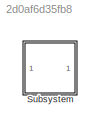
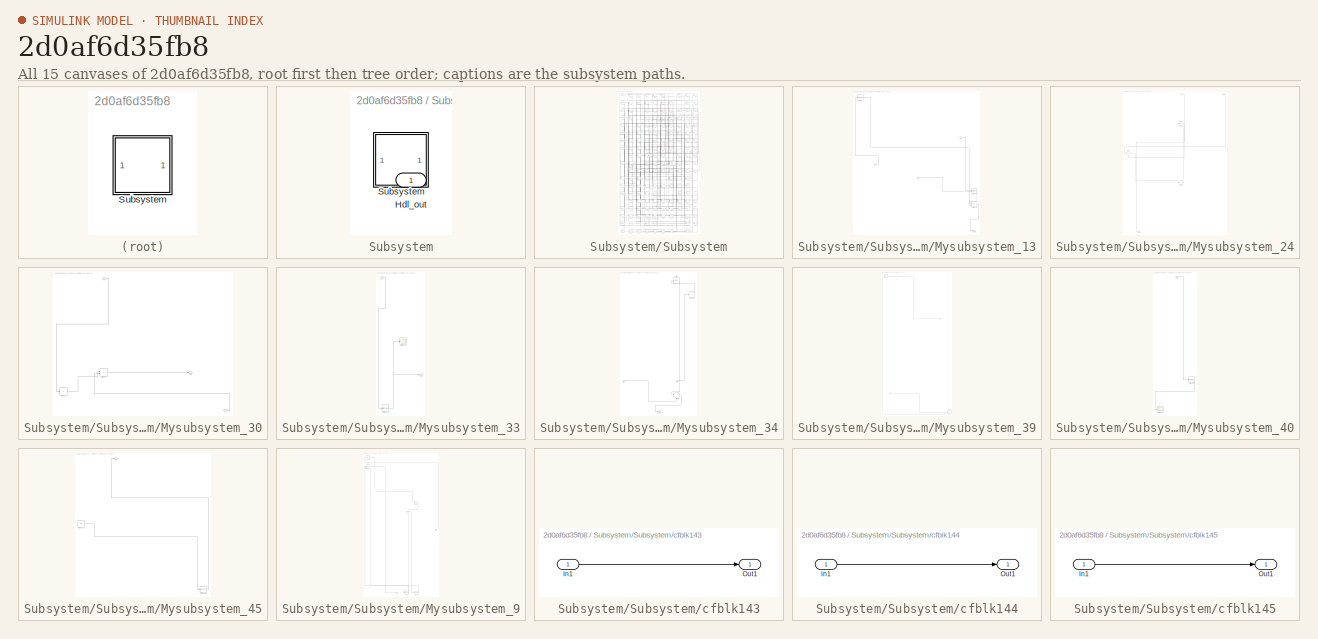
[diagram: thumbnail index - all 15 canvases of the model, root first then tree order]
MODEL slx_2d0af6d35fb8
KIND model
CONFIG AbsTol = auto
CONFIG EnableMultiTasking = off
CONFIG FixedStep = auto
CONFIG MaxStep = auto
CONFIG MinStep = auto
CONFIG RelTol = 1e-3
CONFIG SampleTimeConstraint = Unconstrained
CONFIG SolverName = VariableStepAuto
CONFIG StartTime = 0.0
CONFIG StopTime = 10.0
BLOCK [SubSystem] Subsystem
BLOCK [Outport] Subsystem/Hdl_out
  OutDataTypeStr = uint8
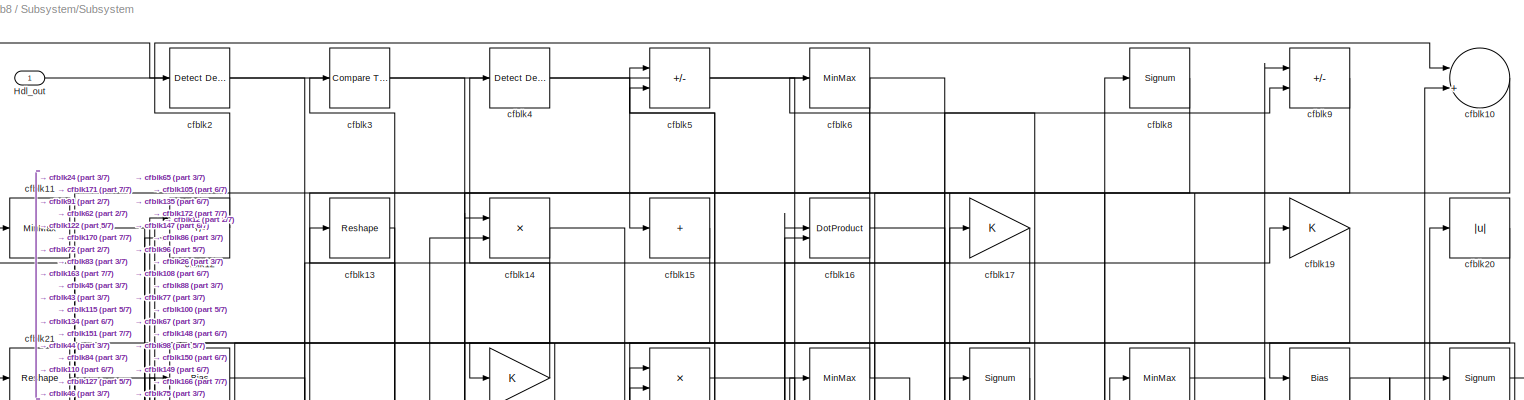
[diagram: Subsystem/Subsystem - part 1/7, full width, top band]
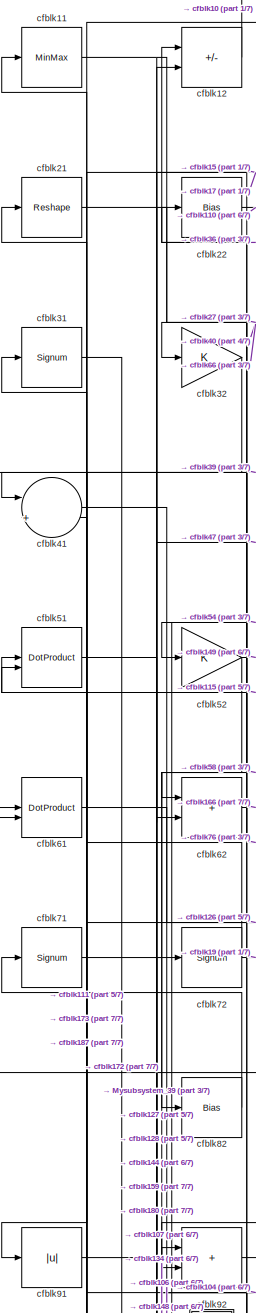
[diagram: Subsystem/Subsystem - part 2/7, top left region]
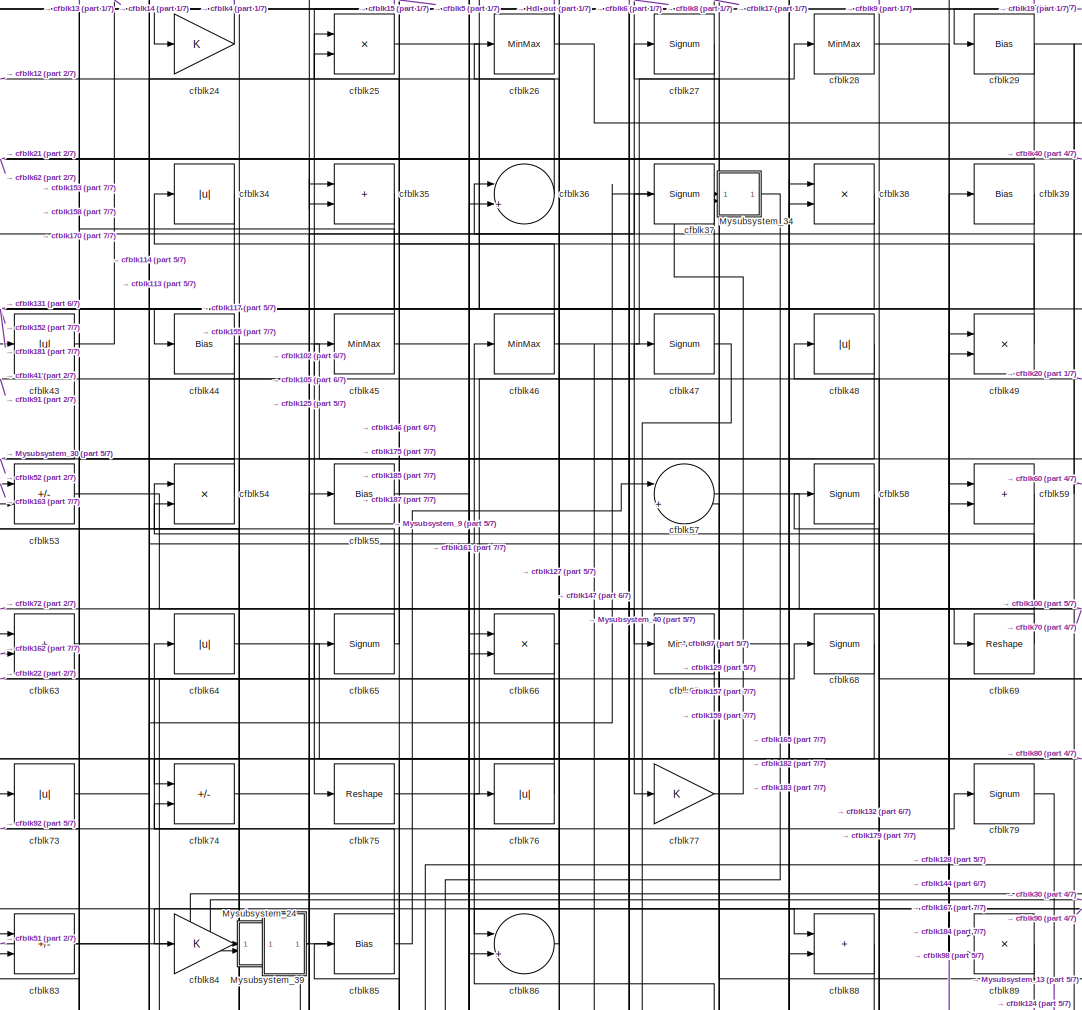
[diagram: Subsystem/Subsystem - part 3/7, top center region]
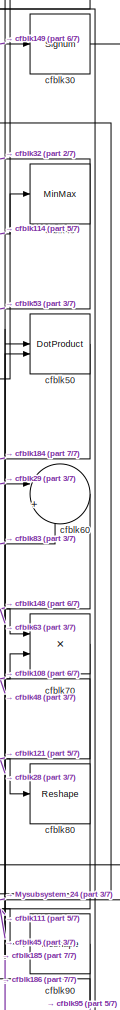
[diagram: Subsystem/Subsystem - part 4/7, top right region]
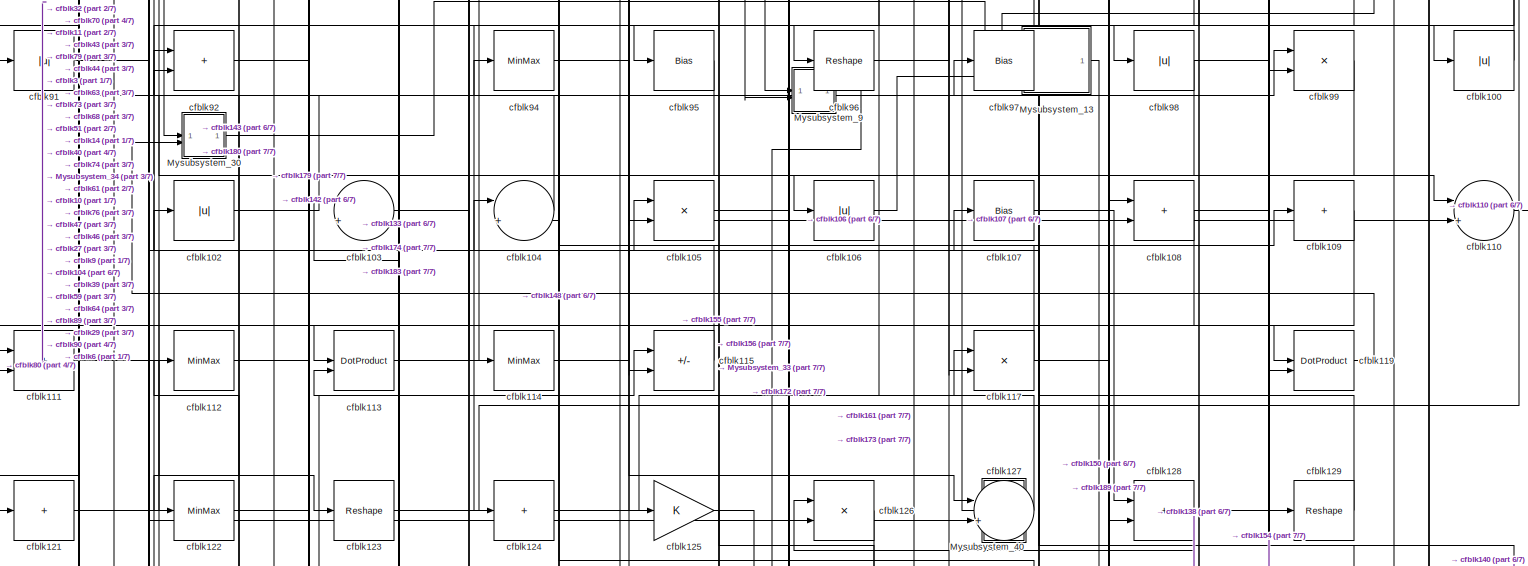
[diagram: Subsystem/Subsystem - part 5/7, full width, middle band]
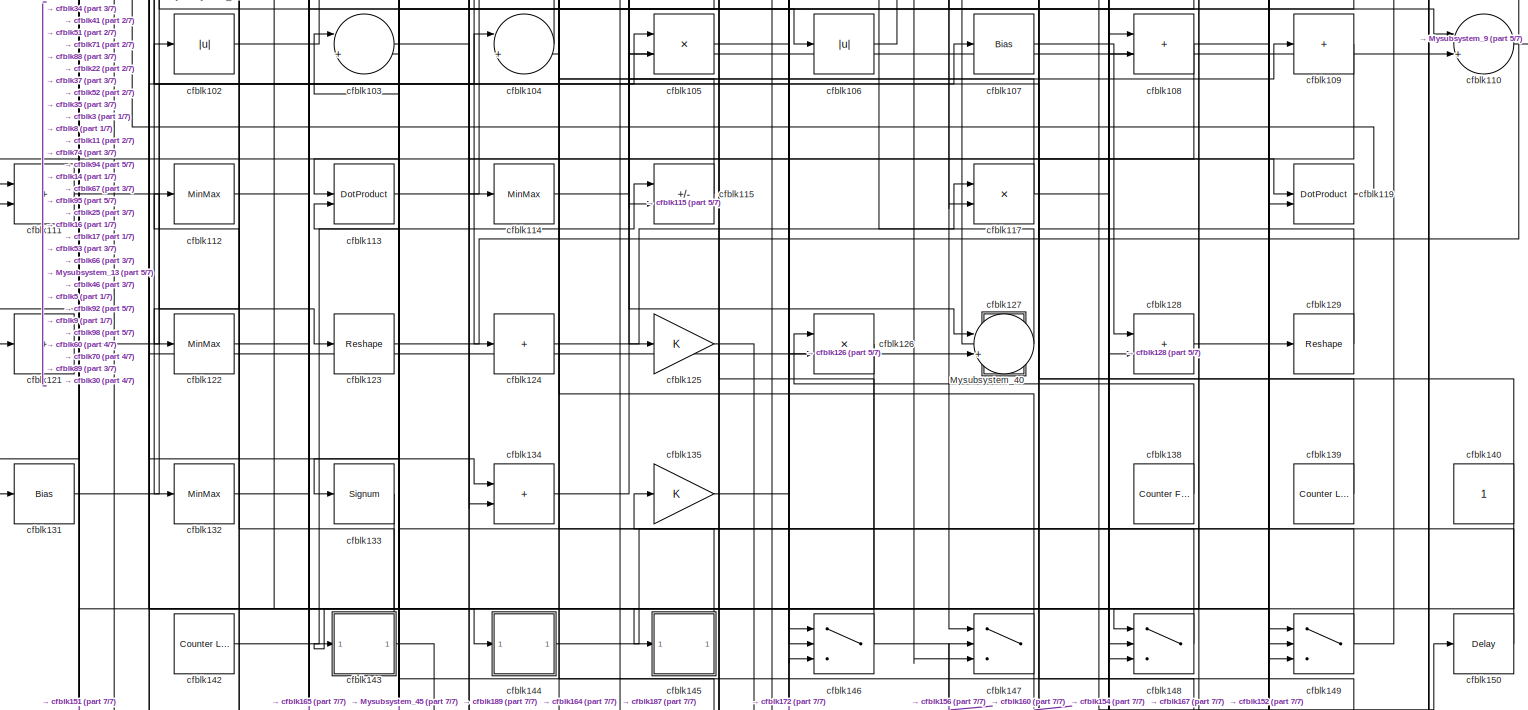
[diagram: Subsystem/Subsystem - part 6/7, full width, middle band]
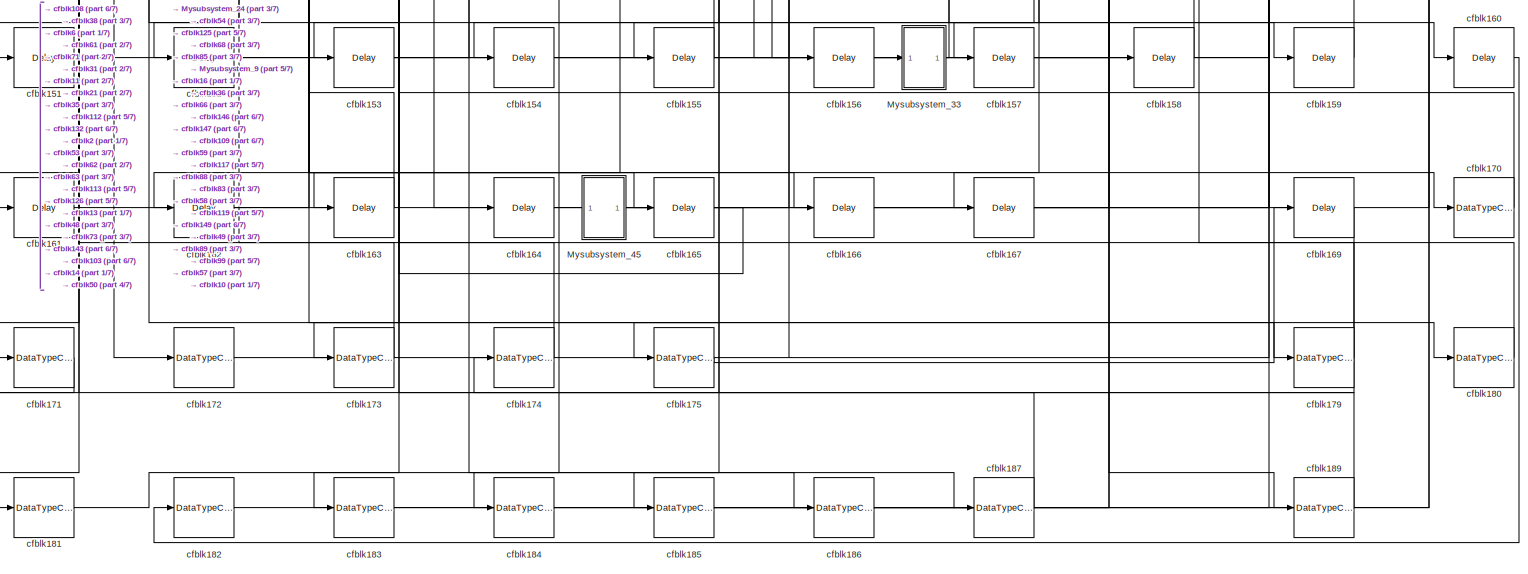
[diagram: Subsystem/Subsystem - part 7/7, full width, bottom band]
BLOCK [SubSystem] Subsystem/Subsystem
BLOCK [Outport] Subsystem/Subsystem/Hdl_out
  OutDataTypeStr = uint8
BLOCK [SubSystem] Subsystem/Subsystem/Mysubsystem_13
  RTWFcnName = Mysubsystem_13
  RTWFcnNameOpts = User specified
  RTWFileNameOpts = Use function name
  RTWSystemCode = Reusable function
  TreatAsAtomicUnit = on
BLOCK [Inport] Subsystem/Subsystem/Mysubsystem_13/In1
BLOCK [Inport] Subsystem/Subsystem/Mysubsystem_13/In2
  Port = 2
BLOCK [Inport] Subsystem/Subsystem/Mysubsystem_13/In3
  Port = 3
BLOCK [Outport] Subsystem/Subsystem/Mysubsystem_13/Out1
BLOCK [DotProduct] Subsystem/Subsystem/Mysubsystem_13/cfblk120
  OutDataTypeStr = Inherit: Inherit via internal rule
BLOCK [Sum] Subsystem/Subsystem/Mysubsystem_13/cfblk130
  IconShape = rectangular
  Inputs = +-
BLOCK [MinMax] Subsystem/Subsystem/Mysubsystem_13/cfblk42
BLOCK [SubSystem] Subsystem/Subsystem/Mysubsystem_24
  RTWFcnName = Mysubsystem_24
  RTWFcnNameOpts = User specified
  RTWFileNameOpts = Use function name
  RTWSystemCode = Reusable function
  TreatAsAtomicUnit = on
BLOCK [Inport] Subsystem/Subsystem/Mysubsystem_24/In1
BLOCK [Inport] Subsystem/Subsystem/Mysubsystem_24/In2
  Port = 2
BLOCK [Outport] Subsystem/Subsystem/Mysubsystem_24/Out1
BLOCK [Sum] Subsystem/Subsystem/Mysubsystem_24/cfblk116
  IconShape = rectangular
  Inputs = +
BLOCK [Bias] Subsystem/Subsystem/Mysubsystem_24/cfblk56
  Bias = 0.0
  SaturateOnIntegerOverflow = off
BLOCK [Sum] Subsystem/Subsystem/Mysubsystem_24/cfblk81
  Inputs = |++
BLOCK [SubSystem] Subsystem/Subsystem/Mysubsystem_30
  RTWFcnName = Mysubsystem_30
  RTWFcnNameOpts = User specified
  RTWFileNameOpts = Use function name
  RTWSystemCode = Reusable function
  TreatAsAtomicUnit = on
BLOCK [Inport] Subsystem/Subsystem/Mysubsystem_30/In1
BLOCK [Inport] Subsystem/Subsystem/Mysubsystem_30/In2
  Port = 2
BLOCK [Outport] Subsystem/Subsystem/Mysubsystem_30/Out1
BLOCK [Sum] Subsystem/Subsystem/Mysubsystem_30/cfblk101
  IconShape = rectangular
  Inputs = +
BLOCK [Sum] Subsystem/Subsystem/Mysubsystem_30/cfblk93
  IconShape = rectangular
BLOCK [SubSystem] Subsystem/Subsystem/Mysubsystem_33
  RTWFcnName = Mysubsystem_33
  RTWFcnNameOpts = User specified
  RTWFileNameOpts = Use function name
  RTWSystemCode = Reusable function
  TreatAsAtomicUnit = on
BLOCK [Inport] Subsystem/Subsystem/Mysubsystem_33/In1
BLOCK [Outport] Subsystem/Subsystem/Mysubsystem_33/Out1
BLOCK [Scope] Subsystem/Subsystem/Mysubsystem_33/cfblk137
  Floating = off
  NumInputPorts = 1
  ScopeSpecificationString = Simulink.scopes.TimeScopeBlockCfg('CurrentConfiguration', extmgr.ConfigurationSet(extmgr.Configuration('Core','General UI',true),extmgr.Configuration('Core','Source UI',true),extmgr.Configuration('Sources','WiredSimulink',true,'DataLoggingVariableName','ScopeData2','DataLoggingSaveFormat','Array','DataLoggingLimitDataPoints',true,'DataLoggingDecimation','1'),extmgr.Configuration('Visuals','Time Do...<+868ch>
BLOCK [DataTypeConversion] Subsystem/Subsystem/Mysubsystem_33/cfblk176
  RndMeth = Floor
  SaturateOnIntegerOverflow = off
BLOCK [SubSystem] Subsystem/Subsystem/Mysubsystem_34
  RTWFcnName = Mysubsystem_34
  RTWFcnNameOpts = User specified
  RTWFileNameOpts = Use function name
  RTWSystemCode = Reusable function
  TreatAsAtomicUnit = on
BLOCK [Inport] Subsystem/Subsystem/Mysubsystem_34/In1
BLOCK [Inport] Subsystem/Subsystem/Mysubsystem_34/In2
  Port = 2
BLOCK [Outport] Subsystem/Subsystem/Mysubsystem_34/Out1
BLOCK [Sum] Subsystem/Subsystem/Mysubsystem_34/cfblk18
  IconShape = rectangular
  Inputs = +
BLOCK [Bias] Subsystem/Subsystem/Mysubsystem_34/cfblk7
  Bias = 0.0
  SaturateOnIntegerOverflow = off
BLOCK [Sum] Subsystem/Subsystem/Mysubsystem_34/cfblk87
  Inputs = |++
BLOCK [SubSystem] Subsystem/Subsystem/Mysubsystem_39
  RTWFcnName = Mysubsystem_39
  RTWFcnNameOpts = User specified
  RTWFileNameOpts = Use function name
  RTWSystemCode = Reusable function
  TreatAsAtomicUnit = on
BLOCK [Inport] Subsystem/Subsystem/Mysubsystem_39/In1
BLOCK [Outport] Subsystem/Subsystem/Mysubsystem_39/Y
BLOCK [Reference] Subsystem/Subsystem/Mysubsystem_39/cfblk1  REF=hdlsllib/Logic and Bit
Operations/Detect Rise
Positive
  SourceBlock = hdlsllib/Logic and Bit\nOperations/Detect Rise\nPositive
  SourceType = Detect Rise Positive
BLOCK [Delay] Subsystem/Subsystem/Mysubsystem_39/cfblk168
  InputPortMap = u0
  SampleTime = 1
BLOCK [SubSystem] Subsystem/Subsystem/Mysubsystem_40
  RTWFcnName = Mysubsystem_40
  RTWFcnNameOpts = User specified
  RTWFileNameOpts = Use function name
  RTWSystemCode = Reusable function
  TreatAsAtomicUnit = on
BLOCK [Inport] Subsystem/Subsystem/Mysubsystem_40/In1
BLOCK [MinMax] Subsystem/Subsystem/Mysubsystem_40/cfblk118
BLOCK [Scope] Subsystem/Subsystem/Mysubsystem_40/cfblk136
  Floating = off
  NumInputPorts = 1
  ScopeSpecificationString = Simulink.scopes.TimeScopeBlockCfg('CurrentConfiguration', extmgr.ConfigurationSet(extmgr.Configuration('Core','General UI',true),extmgr.Configuration('Core','Source UI',true),extmgr.Configuration('Sources','WiredSimulink',true,'DataLoggingVariableName','ScopeData2','DataLoggingSaveFormat','Array','DataLoggingLimitDataPoints',true,'DataLoggingDecimation','1'),extmgr.Configuration('Visuals','Time Do...<+868ch>
BLOCK [SubSystem] Subsystem/Subsystem/Mysubsystem_45
  RTWFcnName = Mysubsystem_45
  RTWFcnNameOpts = User specified
  RTWFileNameOpts = Use function name
  RTWSystemCode = Reusable function
  TreatAsAtomicUnit = on
BLOCK [Outport] Subsystem/Subsystem/Mysubsystem_45/Out1
BLOCK [Ground] Subsystem/Subsystem/Mysubsystem_45/cfblk141
BLOCK [DataTypeConversion] Subsystem/Subsystem/Mysubsystem_45/cfblk188
  OutDataTypeStr = uint8
  RndMeth = Floor
  SaturateOnIntegerOverflow = off
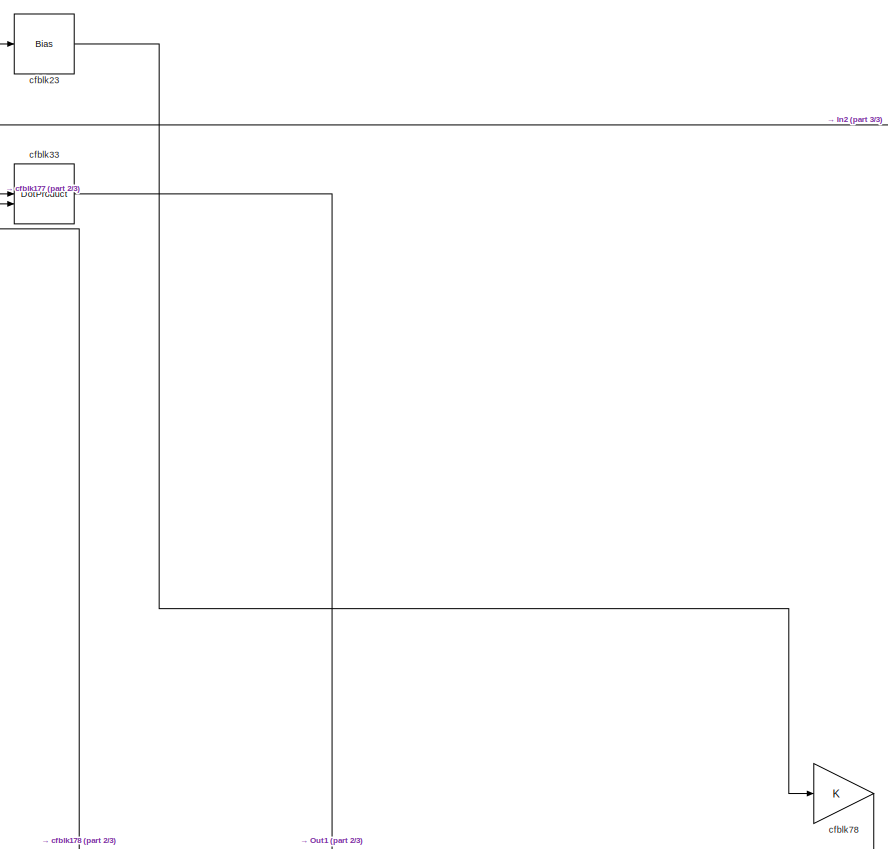
[diagram: Subsystem/Subsystem/Mysubsystem_9 - part 1/3, top center region]
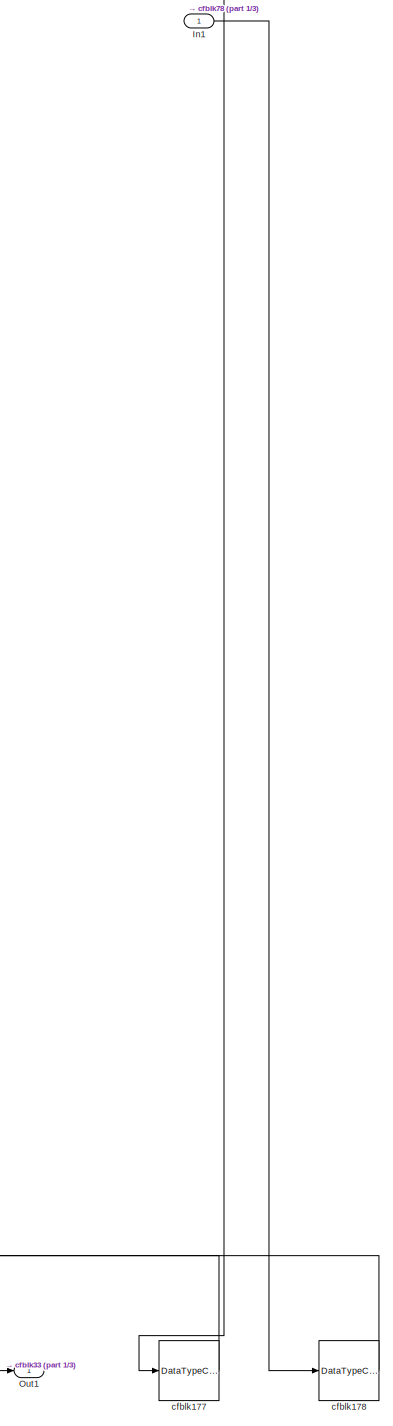
[diagram: Subsystem/Subsystem/Mysubsystem_9 - part 2/3, bottom center region]
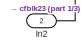
[diagram: Subsystem/Subsystem/Mysubsystem_9 - part 3/3, middle right region]
BLOCK [SubSystem] Subsystem/Subsystem/Mysubsystem_9
  RTWFcnName = Mysubsystem_9
  RTWFcnNameOpts = User specified
  RTWFileNameOpts = Use function name
  RTWSystemCode = Reusable function
  TreatAsAtomicUnit = on
BLOCK [Inport] Subsystem/Subsystem/Mysubsystem_9/In1
BLOCK [Inport] Subsystem/Subsystem/Mysubsystem_9/In2
  Port = 2
BLOCK [Outport] Subsystem/Subsystem/Mysubsystem_9/Out1
BLOCK [DataTypeConversion] Subsystem/Subsystem/Mysubsystem_9/cfblk177
  OutDataTypeStr = uint8
  RndMeth = Floor
  SaturateOnIntegerOverflow = off
BLOCK [DataTypeConversion] Subsystem/Subsystem/Mysubsystem_9/cfblk178
  OutDataTypeStr = uint8
  RndMeth = Floor
  SaturateOnIntegerOverflow = off
BLOCK [Bias] Subsystem/Subsystem/Mysubsystem_9/cfblk23
  Bias = 0.0
  SaturateOnIntegerOverflow = off
BLOCK [DotProduct] Subsystem/Subsystem/Mysubsystem_9/cfblk33
  OutDataTypeStr = Inherit: Inherit via internal rule
BLOCK [Gain] Subsystem/Subsystem/Mysubsystem_9/cfblk78
BLOCK [Sum] Subsystem/Subsystem/cfblk10
  Inputs = |++
  OutDataTypeStr = uint8
BLOCK [Abs] Subsystem/Subsystem/cfblk100
  OutDataTypeStr = uint8
  SaturateOnIntegerOverflow = off
BLOCK [Abs] Subsystem/Subsystem/cfblk102
  OutDataTypeStr = uint8
  SaturateOnIntegerOverflow = off
BLOCK [Sum] Subsystem/Subsystem/cfblk103
  Inputs = |++
  OutDataTypeStr = uint8
BLOCK [Sum] Subsystem/Subsystem/cfblk104
  Inputs = |++
  OutDataTypeStr = uint8
BLOCK [Product] Subsystem/Subsystem/cfblk105
  Inputs = */
  OutDataTypeStr = uint8
  RndMeth = Zero
  SaturateOnIntegerOverflow = on
BLOCK [Abs] Subsystem/Subsystem/cfblk106
  OutDataTypeStr = uint8
  SaturateOnIntegerOverflow = off
BLOCK [Bias] Subsystem/Subsystem/cfblk107
  Bias = 0.0
  SaturateOnIntegerOverflow = off
BLOCK [Sum] Subsystem/Subsystem/cfblk108
  IconShape = rectangular
  OutDataTypeStr = uint8
BLOCK [Sum] Subsystem/Subsystem/cfblk109
  IconShape = rectangular
  Inputs = +
  OutDataTypeStr = uint8
BLOCK [MinMax] Subsystem/Subsystem/cfblk11
  OutDataTypeStr = uint8
BLOCK [Sum] Subsystem/Subsystem/cfblk110
  Inputs = |++
  OutDataTypeStr = uint8
BLOCK [Sum] Subsystem/Subsystem/cfblk111
  IconShape = rectangular
  OutDataTypeStr = uint8
BLOCK [MinMax] Subsystem/Subsystem/cfblk112
  OutDataTypeStr = uint8
BLOCK [DotProduct] Subsystem/Subsystem/cfblk113
  OutDataTypeStr = uint8
BLOCK [MinMax] Subsystem/Subsystem/cfblk114
  OutDataTypeStr = uint8
BLOCK [Sum] Subsystem/Subsystem/cfblk115
  IconShape = rectangular
  Inputs = +-
  OutDataTypeStr = uint8
BLOCK [Product] Subsystem/Subsystem/cfblk117
  Inputs = */
  OutDataTypeStr = uint8
  RndMeth = Zero
  SaturateOnIntegerOverflow = on
BLOCK [DotProduct] Subsystem/Subsystem/cfblk119
  OutDataTypeStr = uint8
BLOCK [Sum] Subsystem/Subsystem/cfblk12
  IconShape = rectangular
  Inputs = +-
  OutDataTypeStr = uint8
BLOCK [Sum] Subsystem/Subsystem/cfblk121
  IconShape = rectangular
  Inputs = +
  OutDataTypeStr = uint8
BLOCK [MinMax] Subsystem/Subsystem/cfblk122
  OutDataTypeStr = uint8
BLOCK [Reshape] Subsystem/Subsystem/cfblk123
BLOCK [Sum] Subsystem/Subsystem/cfblk124
  IconShape = rectangular
  Inputs = +
  OutDataTypeStr = uint8
BLOCK [Gain] Subsystem/Subsystem/cfblk125
  OutDataTypeStr = uint8
BLOCK [Product] Subsystem/Subsystem/cfblk126
  Inputs = */
  OutDataTypeStr = uint8
  RndMeth = Zero
  SaturateOnIntegerOverflow = on
BLOCK [Sum] Subsystem/Subsystem/cfblk127
  Inputs = |++
  OutDataTypeStr = uint8
BLOCK [Sum] Subsystem/Subsystem/cfblk128
  IconShape = rectangular
  OutDataTypeStr = uint8
BLOCK [Reshape] Subsystem/Subsystem/cfblk129
BLOCK [Reshape] Subsystem/Subsystem/cfblk13
BLOCK [Bias] Subsystem/Subsystem/cfblk131
  Bias = 0.0
  SaturateOnIntegerOverflow = off
BLOCK [MinMax] Subsystem/Subsystem/cfblk132
  OutDataTypeStr = uint8
BLOCK [Signum] Subsystem/Subsystem/cfblk133
BLOCK [Sum] Subsystem/Subsystem/cfblk134
  IconShape = rectangular
  OutDataTypeStr = uint8
BLOCK [Gain] Subsystem/Subsystem/cfblk135
  OutDataTypeStr = uint8
BLOCK [Reference] Subsystem/Subsystem/cfblk138  REF=hdlsllib/Sources/Counter
Free-Running
  SourceBlock = hdlsllib/Sources/Counter\nFree-Running
  SourceType = Counter Free-Running
BLOCK [Reference] Subsystem/Subsystem/cfblk139  REF=hdlsllib/Sources/Counter
Limited
  SourceBlock = hdlsllib/Sources/Counter\nLimited
  SourceType = Counter Limited
BLOCK [Product] Subsystem/Subsystem/cfblk14
  Inputs = */
  OutDataTypeStr = uint8
  RndMeth = Zero
  SaturateOnIntegerOverflow = on
BLOCK [Constant] Subsystem/Subsystem/cfblk140
  OutDataTypeStr = uint8
  SampleTime = -1
BLOCK [Reference] Subsystem/Subsystem/cfblk142  REF=hdlsllib/Sources/Counter
Limited
  SourceBlock = hdlsllib/Sources/Counter\nLimited
  SourceType = Counter Limited
BLOCK [SubSystem] Subsystem/Subsystem/cfblk143
  LibrarySourceBlock = hdlsllib/Ports &\nSubsystems/Subsystem
BLOCK [Inport] Subsystem/Subsystem/cfblk143/In1
BLOCK [Outport] Subsystem/Subsystem/cfblk143/Out1
BLOCK [SubSystem] Subsystem/Subsystem/cfblk144
  LibrarySourceBlock = hdlsllib/Ports &\nSubsystems/Subsystem
BLOCK [Inport] Subsystem/Subsystem/cfblk144/In1
BLOCK [Outport] Subsystem/Subsystem/cfblk144/Out1
BLOCK [SubSystem] Subsystem/Subsystem/cfblk145
  LibrarySourceBlock = hdlsllib/Ports &\nSubsystems/Subsystem
BLOCK [Inport] Subsystem/Subsystem/cfblk145/In1
BLOCK [Outport] Subsystem/Subsystem/cfblk145/Out1
BLOCK [Switch] Subsystem/Subsystem/cfblk146
  InputSameDT = off
  OutDataTypeStr = uint8
  SaturateOnIntegerOverflow = off
BLOCK [Switch] Subsystem/Subsystem/cfblk147
  InputSameDT = off
  OutDataTypeStr = uint8
  SaturateOnIntegerOverflow = off
BLOCK [Switch] Subsystem/Subsystem/cfblk148
  InputSameDT = off
  OutDataTypeStr = uint8
  SaturateOnIntegerOverflow = off
BLOCK [Switch] Subsystem/Subsystem/cfblk149
  InputSameDT = off
  OutDataTypeStr = uint8
  SaturateOnIntegerOverflow = off
BLOCK [Sum] Subsystem/Subsystem/cfblk15
  IconShape = rectangular
  Inputs = +
  OutDataTypeStr = uint8
BLOCK [Delay] Subsystem/Subsystem/cfblk150
  InputPortMap = u0
  SampleTime = 1
BLOCK [Delay] Subsystem/Subsystem/cfblk151
  InputPortMap = u0
  SampleTime = 1
BLOCK [Delay] Subsystem/Subsystem/cfblk152
  InputPortMap = u0
  SampleTime = 1
BLOCK [Delay] Subsystem/Subsystem/cfblk153
  InputPortMap = u0
  SampleTime = 1
BLOCK [Delay] Subsystem/Subsystem/cfblk154
  InputPortMap = u0
  SampleTime = 1
BLOCK [Delay] Subsystem/Subsystem/cfblk155
  InputPortMap = u0
  SampleTime = 1
BLOCK [Delay] Subsystem/Subsystem/cfblk156
  InputPortMap = u0
  SampleTime = 1
BLOCK [Delay] Subsystem/Subsystem/cfblk157
  InputPortMap = u0
  SampleTime = 1
BLOCK [Delay] Subsystem/Subsystem/cfblk158
  InputPortMap = u0
  SampleTime = 1
BLOCK [Delay] Subsystem/Subsystem/cfblk159
  InputPortMap = u0
  SampleTime = 1
BLOCK [DotProduct] Subsystem/Subsystem/cfblk16
  OutDataTypeStr = uint8
BLOCK [Delay] Subsystem/Subsystem/cfblk160
  InputPortMap = u0
  SampleTime = 1
BLOCK [Delay] Subsystem/Subsystem/cfblk161
  InputPortMap = u0
  SampleTime = 1
BLOCK [Delay] Subsystem/Subsystem/cfblk162
  InputPortMap = u0
  SampleTime = 1
BLOCK [Delay] Subsystem/Subsystem/cfblk163
  InputPortMap = u0
  SampleTime = 1
BLOCK [Delay] Subsystem/Subsystem/cfblk164
  InputPortMap = u0
  SampleTime = 1
BLOCK [Delay] Subsystem/Subsystem/cfblk165
  InputPortMap = u0
  SampleTime = 1
BLOCK [Delay] Subsystem/Subsystem/cfblk166
  InputPortMap = u0
  SampleTime = 1
BLOCK [Delay] Subsystem/Subsystem/cfblk167
  InputPortMap = u0
  SampleTime = 1
BLOCK [Delay] Subsystem/Subsystem/cfblk169
  InputPortMap = u0
  SampleTime = 1
BLOCK [Gain] Subsystem/Subsystem/cfblk17
  OutDataTypeStr = uint8
BLOCK [DataTypeConversion] Subsystem/Subsystem/cfblk170
  OutDataTypeStr = uint8
  RndMeth = Floor
  SaturateOnIntegerOverflow = off
BLOCK [DataTypeConversion] Subsystem/Subsystem/cfblk171
  OutDataTypeStr = uint8
  RndMeth = Floor
  SaturateOnIntegerOverflow = off
BLOCK [DataTypeConversion] Subsystem/Subsystem/cfblk172
  OutDataTypeStr = uint8
  RndMeth = Floor
  SaturateOnIntegerOverflow = off
BLOCK [DataTypeConversion] Subsystem/Subsystem/cfblk173
  OutDataTypeStr = uint8
  RndMeth = Floor
  SaturateOnIntegerOverflow = off
BLOCK [DataTypeConversion] Subsystem/Subsystem/cfblk174
  OutDataTypeStr = uint8
  RndMeth = Floor
  SaturateOnIntegerOverflow = off
BLOCK [DataTypeConversion] Subsystem/Subsystem/cfblk175
  OutDataTypeStr = uint8
  RndMeth = Floor
  SaturateOnIntegerOverflow = off
BLOCK [DataTypeConversion] Subsystem/Subsystem/cfblk179
  OutDataTypeStr = uint8
  RndMeth = Floor
  SaturateOnIntegerOverflow = off
BLOCK [DataTypeConversion] Subsystem/Subsystem/cfblk180
  OutDataTypeStr = uint8
  RndMeth = Floor
  SaturateOnIntegerOverflow = off
BLOCK [DataTypeConversion] Subsystem/Subsystem/cfblk181
  OutDataTypeStr = uint8
  RndMeth = Floor
  SaturateOnIntegerOverflow = off
BLOCK [DataTypeConversion] Subsystem/Subsystem/cfblk182
  OutDataTypeStr = uint8
  RndMeth = Floor
  SaturateOnIntegerOverflow = off
BLOCK [DataTypeConversion] Subsystem/Subsystem/cfblk183
  OutDataTypeStr = uint8
  RndMeth = Floor
  SaturateOnIntegerOverflow = off
BLOCK [DataTypeConversion] Subsystem/Subsystem/cfblk184
  OutDataTypeStr = uint8
  RndMeth = Floor
  SaturateOnIntegerOverflow = off
BLOCK [DataTypeConversion] Subsystem/Subsystem/cfblk185
  OutDataTypeStr = uint8
  RndMeth = Floor
  SaturateOnIntegerOverflow = off
BLOCK [DataTypeConversion] Subsystem/Subsystem/cfblk186
  OutDataTypeStr = uint8
  RndMeth = Floor
  SaturateOnIntegerOverflow = off
BLOCK [DataTypeConversion] Subsystem/Subsystem/cfblk187
  OutDataTypeStr = uint8
  RndMeth = Floor
  SaturateOnIntegerOverflow = off
BLOCK [DataTypeConversion] Subsystem/Subsystem/cfblk189
  OutDataTypeStr = uint8
  RndMeth = Floor
  SaturateOnIntegerOverflow = off
BLOCK [Gain] Subsystem/Subsystem/cfblk19
  OutDataTypeStr = uint8
BLOCK [Reference] Subsystem/Subsystem/cfblk2  REF=simulink/Logic and Bit
Operations/Detect
Decrease
  LibrarySourceBlock = hdlsllib/Logic and Bit\nOperations/Detect\nDecrease
  SourceBlock = simulink/Logic and Bit\nOperations/Detect\nDecrease
  SourceType = Detect Decrease
BLOCK [Abs] Subsystem/Subsystem/cfblk20
  OutDataTypeStr = uint8
  SaturateOnIntegerOverflow = off
BLOCK [Reshape] Subsystem/Subsystem/cfblk21
BLOCK [Bias] Subsystem/Subsystem/cfblk22
  Bias = 0.0
  SaturateOnIntegerOverflow = off
BLOCK [Gain] Subsystem/Subsystem/cfblk24
  OutDataTypeStr = uint8
BLOCK [Product] Subsystem/Subsystem/cfblk25
  Inputs = */
  OutDataTypeStr = uint8
  RndMeth = Zero
  SaturateOnIntegerOverflow = on
BLOCK [MinMax] Subsystem/Subsystem/cfblk26
  OutDataTypeStr = uint8
BLOCK [Signum] Subsystem/Subsystem/cfblk27
BLOCK [MinMax] Subsystem/Subsystem/cfblk28
  OutDataTypeStr = uint8
BLOCK [Bias] Subsystem/Subsystem/cfblk29
  Bias = 0.0
  SaturateOnIntegerOverflow = off
BLOCK [Reference] Subsystem/Subsystem/cfblk3  REF=hdlsllib/Logic and Bit
Operations/Compare
To Constant
  SourceBlock = hdlsllib/Logic and Bit\nOperations/Compare\nTo Constant
  SourceType = Compare To Constant
BLOCK [Signum] Subsystem/Subsystem/cfblk30
BLOCK [Signum] Subsystem/Subsystem/cfblk31
BLOCK [Gain] Subsystem/Subsystem/cfblk32
  OutDataTypeStr = uint8
BLOCK [Abs] Subsystem/Subsystem/cfblk34
  OutDataTypeStr = uint8
  SaturateOnIntegerOverflow = off
BLOCK [Sum] Subsystem/Subsystem/cfblk35
  IconShape = rectangular
  OutDataTypeStr = uint8
BLOCK [Sum] Subsystem/Subsystem/cfblk36
  Inputs = |++
  OutDataTypeStr = uint8
BLOCK [Signum] Subsystem/Subsystem/cfblk37
BLOCK [Product] Subsystem/Subsystem/cfblk38
  Inputs = */
  OutDataTypeStr = uint8
  RndMeth = Zero
  SaturateOnIntegerOverflow = on
BLOCK [Bias] Subsystem/Subsystem/cfblk39
  Bias = 0.0
  SaturateOnIntegerOverflow = off
BLOCK [Reference] Subsystem/Subsystem/cfblk4  REF=simulink/Logic and Bit
Operations/Detect
Decrease
  LibrarySourceBlock = hdlsllib/Logic and Bit\nOperations/Detect\nDecrease
  SourceBlock = simulink/Logic and Bit\nOperations/Detect\nDecrease
  SourceType = Detect Decrease
BLOCK [MinMax] Subsystem/Subsystem/cfblk40
  OutDataTypeStr = uint8
BLOCK [Sum] Subsystem/Subsystem/cfblk41
  Inputs = |++
  OutDataTypeStr = uint8
BLOCK [Abs] Subsystem/Subsystem/cfblk43
  OutDataTypeStr = uint8
  SaturateOnIntegerOverflow = off
BLOCK [Bias] Subsystem/Subsystem/cfblk44
  Bias = 0.0
  SaturateOnIntegerOverflow = off
BLOCK [MinMax] Subsystem/Subsystem/cfblk45
  OutDataTypeStr = uint8
BLOCK [MinMax] Subsystem/Subsystem/cfblk46
  OutDataTypeStr = uint8
BLOCK [Signum] Subsystem/Subsystem/cfblk47
BLOCK [Abs] Subsystem/Subsystem/cfblk48
  OutDataTypeStr = uint8
  SaturateOnIntegerOverflow = off
BLOCK [Product] Subsystem/Subsystem/cfblk49
  Inputs = */
  OutDataTypeStr = uint8
  RndMeth = Zero
  SaturateOnIntegerOverflow = on
BLOCK [Sum] Subsystem/Subsystem/cfblk5
  IconShape = rectangular
  Inputs = +-
  OutDataTypeStr = uint8
BLOCK [DotProduct] Subsystem/Subsystem/cfblk50
  OutDataTypeStr = uint8
BLOCK [DotProduct] Subsystem/Subsystem/cfblk51
  OutDataTypeStr = uint8
BLOCK [Gain] Subsystem/Subsystem/cfblk52
  OutDataTypeStr = uint8
BLOCK [Sum] Subsystem/Subsystem/cfblk53
  IconShape = rectangular
  Inputs = +-
  OutDataTypeStr = uint8
BLOCK [Product] Subsystem/Subsystem/cfblk54
  Inputs = */
  OutDataTypeStr = uint8
  RndMeth = Zero
  SaturateOnIntegerOverflow = on
BLOCK [Bias] Subsystem/Subsystem/cfblk55
  Bias = 0.0
  SaturateOnIntegerOverflow = off
BLOCK [Sum] Subsystem/Subsystem/cfblk57
  Inputs = |++
  OutDataTypeStr = uint8
BLOCK [Signum] Subsystem/Subsystem/cfblk58
BLOCK [Sum] Subsystem/Subsystem/cfblk59
  IconShape = rectangular
  OutDataTypeStr = uint8
BLOCK [MinMax] Subsystem/Subsystem/cfblk6
  OutDataTypeStr = uint8
BLOCK [Sum] Subsystem/Subsystem/cfblk60
  Inputs = |++
  OutDataTypeStr = uint8
BLOCK [DotProduct] Subsystem/Subsystem/cfblk61
  OutDataTypeStr = uint8
BLOCK [Sum] Subsystem/Subsystem/cfblk62
  IconShape = rectangular
  OutDataTypeStr = uint8
BLOCK [Sum] Subsystem/Subsystem/cfblk63
  IconShape = rectangular
  OutDataTypeStr = uint8
BLOCK [Abs] Subsystem/Subsystem/cfblk64
  OutDataTypeStr = uint8
  SaturateOnIntegerOverflow = off
BLOCK [Signum] Subsystem/Subsystem/cfblk65
BLOCK [Product] Subsystem/Subsystem/cfblk66
  Inputs = */
  OutDataTypeStr = uint8
  RndMeth = Zero
  SaturateOnIntegerOverflow = on
BLOCK [MinMax] Subsystem/Subsystem/cfblk67
  OutDataTypeStr = uint8
BLOCK [Signum] Subsystem/Subsystem/cfblk68
BLOCK [Reshape] Subsystem/Subsystem/cfblk69
BLOCK [Product] Subsystem/Subsystem/cfblk70
  Inputs = */
  OutDataTypeStr = uint8
  RndMeth = Zero
  SaturateOnIntegerOverflow = on
BLOCK [Signum] Subsystem/Subsystem/cfblk71
BLOCK [Signum] Subsystem/Subsystem/cfblk72
BLOCK [Abs] Subsystem/Subsystem/cfblk73
  OutDataTypeStr = uint8
  SaturateOnIntegerOverflow = off
BLOCK [Sum] Subsystem/Subsystem/cfblk74
  IconShape = rectangular
  Inputs = +-
  OutDataTypeStr = uint8
BLOCK [Reshape] Subsystem/Subsystem/cfblk75
BLOCK [Abs] Subsystem/Subsystem/cfblk76
  OutDataTypeStr = uint8
  SaturateOnIntegerOverflow = off
BLOCK [Gain] Subsystem/Subsystem/cfblk77
  OutDataTypeStr = uint8
BLOCK [Signum] Subsystem/Subsystem/cfblk79
BLOCK [Signum] Subsystem/Subsystem/cfblk8
BLOCK [Reshape] Subsystem/Subsystem/cfblk80
BLOCK [Bias] Subsystem/Subsystem/cfblk82
  Bias = 0.0
  SaturateOnIntegerOverflow = off
BLOCK [Sum] Subsystem/Subsystem/cfblk83
  IconShape = rectangular
  Inputs = +-
  OutDataTypeStr = uint8
BLOCK [Gain] Subsystem/Subsystem/cfblk84
  OutDataTypeStr = uint8
BLOCK [Bias] Subsystem/Subsystem/cfblk85
  Bias = 0.0
  SaturateOnIntegerOverflow = off
BLOCK [Sum] Subsystem/Subsystem/cfblk86
  Inputs = |++
  OutDataTypeStr = uint8
BLOCK [Sum] Subsystem/Subsystem/cfblk88
  IconShape = rectangular
  OutDataTypeStr = uint8
BLOCK [Product] Subsystem/Subsystem/cfblk89
  Inputs = */
  OutDataTypeStr = uint8
  RndMeth = Zero
  SaturateOnIntegerOverflow = on
BLOCK [Sum] Subsystem/Subsystem/cfblk9
  IconShape = rectangular
  Inputs = +-
  OutDataTypeStr = uint8
BLOCK [Reshape] Subsystem/Subsystem/cfblk90
BLOCK [Abs] Subsystem/Subsystem/cfblk91
  OutDataTypeStr = uint8
  SaturateOnIntegerOverflow = off
BLOCK [Sum] Subsystem/Subsystem/cfblk92
  IconShape = rectangular
  OutDataTypeStr = uint8
BLOCK [MinMax] Subsystem/Subsystem/cfblk94
  OutDataTypeStr = uint8
BLOCK [Bias] Subsystem/Subsystem/cfblk95
  Bias = 0.0
  SaturateOnIntegerOverflow = off
BLOCK [Reshape] Subsystem/Subsystem/cfblk96
BLOCK [Bias] Subsystem/Subsystem/cfblk97
  Bias = 0.0
  SaturateOnIntegerOverflow = off
BLOCK [Abs] Subsystem/Subsystem/cfblk98
  OutDataTypeStr = uint8
  SaturateOnIntegerOverflow = off
BLOCK [Product] Subsystem/Subsystem/cfblk99
  Inputs = */
  OutDataTypeStr = uint8
  RndMeth = Zero
  SaturateOnIntegerOverflow = on
LINE Subsystem/Subsystem/Mysubsystem_13/In1:1 -> Subsystem/Subsystem/Mysubsystem_13/cfblk120:1
LINE Subsystem/Subsystem/Mysubsystem_13/In2:1 -> Subsystem/Subsystem/Mysubsystem_13/cfblk42:1
LINE Subsystem/Subsystem/Mysubsystem_13/In3:1 -> Subsystem/Subsystem/Mysubsystem_13/cfblk120:2
LINE Subsystem/Subsystem/Mysubsystem_13/cfblk120:1 -> Subsystem/Subsystem/Mysubsystem_13/cfblk130:2
LINE Subsystem/Subsystem/Mysubsystem_13/cfblk130:1 -> Subsystem/Subsystem/Mysubsystem_13/Out1:1
LINE Subsystem/Subsystem/Mysubsystem_13/cfblk42:1 -> Subsystem/Subsystem/Mysubsystem_13/cfblk130:1
LINE Subsystem/Subsystem/Mysubsystem_13:1 -> Subsystem/Subsystem/cfblk150:1
LINE Subsystem/Subsystem/Mysubsystem_24/In1:1 -> Subsystem/Subsystem/Mysubsystem_24/cfblk81:2
LINE Subsystem/Subsystem/Mysubsystem_24/In2:1 -> Subsystem/Subsystem/Mysubsystem_24/cfblk81:1
LINE Subsystem/Subsystem/Mysubsystem_24/cfblk116:1 -> Subsystem/Subsystem/Mysubsystem_24/cfblk56:1
LINE Subsystem/Subsystem/Mysubsystem_24/cfblk56:1 -> Subsystem/Subsystem/Mysubsystem_24/Out1:1
LINE Subsystem/Subsystem/Mysubsystem_24/cfblk81:1 -> Subsystem/Subsystem/Mysubsystem_24/cfblk116:1
LINE Subsystem/Subsystem/Mysubsystem_24:1 -> Subsystem/Subsystem/cfblk162:1
LINE Subsystem/Subsystem/Mysubsystem_30/In1:1 -> Subsystem/Subsystem/Mysubsystem_30/cfblk101:1
LINE Subsystem/Subsystem/Mysubsystem_30/In2:1 -> Subsystem/Subsystem/Mysubsystem_30/cfblk93:2
LINE Subsystem/Subsystem/Mysubsystem_30/cfblk101:1 -> Subsystem/Subsystem/Mysubsystem_30/cfblk93:1
LINE Subsystem/Subsystem/Mysubsystem_30/cfblk93:1 -> Subsystem/Subsystem/Mysubsystem_30/Out1:1
LINE Subsystem/Subsystem/Mysubsystem_30:1 -> Subsystem/Subsystem/Mysubsystem_13:2
LINE Subsystem/Subsystem/Mysubsystem_33/In1:1 -> Subsystem/Subsystem/Mysubsystem_33/cfblk176:1
NET Subsystem/Subsystem/Mysubsystem_33/cfblk176:1 -> Subsystem/Subsystem/Mysubsystem_33/Out1:1, Subsystem/Subsystem/Mysubsystem_33/cfblk137:1
LINE Subsystem/Subsystem/Mysubsystem_33:1 -> Subsystem/Subsystem/cfblk158:1
LINE Subsystem/Subsystem/Mysubsystem_34/In1:1 -> Subsystem/Subsystem/Mysubsystem_34/cfblk87:2
LINE Subsystem/Subsystem/Mysubsystem_34/In2:1 -> Subsystem/Subsystem/Mysubsystem_34/cfblk18:1
LINE Subsystem/Subsystem/Mysubsystem_34/cfblk18:1 -> Subsystem/Subsystem/Mysubsystem_34/cfblk7:1
LINE Subsystem/Subsystem/Mysubsystem_34/cfblk7:1 -> Subsystem/Subsystem/Mysubsystem_34/cfblk87:1
LINE Subsystem/Subsystem/Mysubsystem_34/cfblk87:1 -> Subsystem/Subsystem/Mysubsystem_34/Out1:1
LINE Subsystem/Subsystem/Mysubsystem_34:1 -> Subsystem/Subsystem/Mysubsystem_9:1
LINE Subsystem/Subsystem/Mysubsystem_39/In1:1 -> Subsystem/Subsystem/Mysubsystem_39/cfblk168:1
LINE Subsystem/Subsystem/Mysubsystem_39/cfblk168:1 -> Subsystem/Subsystem/Mysubsystem_39/cfblk1:1
LINE Subsystem/Subsystem/Mysubsystem_39/cfblk1:1 -> Subsystem/Subsystem/Mysubsystem_39/Y:1
LINE Subsystem/Subsystem/Mysubsystem_39:1 -> Subsystem/Subsystem/cfblk57:1
LINE Subsystem/Subsystem/Mysubsystem_40/In1:1 -> Subsystem/Subsystem/Mysubsystem_40/cfblk118:1
LINE Subsystem/Subsystem/Mysubsystem_40/cfblk118:1 -> Subsystem/Subsystem/Mysubsystem_40/cfblk136:1
LINE Subsystem/Subsystem/Mysubsystem_45/cfblk141:1 -> Subsystem/Subsystem/Mysubsystem_45/cfblk188:1
LINE Subsystem/Subsystem/Mysubsystem_45/cfblk188:1 -> Subsystem/Subsystem/Mysubsystem_45/Out1:1
LINE Subsystem/Subsystem/Mysubsystem_45:1 -> Subsystem/Subsystem/cfblk103:1
LINE Subsystem/Subsystem/Mysubsystem_9/In1:1 -> Subsystem/Subsystem/Mysubsystem_9/cfblk178:1
LINE Subsystem/Subsystem/Mysubsystem_9/In2:1 -> Subsystem/Subsystem/Mysubsystem_9/cfblk23:1
LINE Subsystem/Subsystem/Mysubsystem_9/cfblk177:1 -> Subsystem/Subsystem/Mysubsystem_9/cfblk33:1
LINE Subsystem/Subsystem/Mysubsystem_9/cfblk178:1 -> Subsystem/Subsystem/Mysubsystem_9/cfblk33:2
LINE Subsystem/Subsystem/Mysubsystem_9/cfblk23:1 -> Subsystem/Subsystem/Mysubsystem_9/cfblk78:1
LINE Subsystem/Subsystem/Mysubsystem_9/cfblk33:1 -> Subsystem/Subsystem/Mysubsystem_9/Out1:1
LINE Subsystem/Subsystem/Mysubsystem_9/cfblk78:1 -> Subsystem/Subsystem/Mysubsystem_9/cfblk177:1
LINE Subsystem/Subsystem/Mysubsystem_9:1 -> Subsystem/Subsystem/Mysubsystem_33:1
LINE Subsystem/Subsystem/cfblk100:1 -> Subsystem/Subsystem/cfblk6:1
LINE Subsystem/Subsystem/cfblk102:1 -> Subsystem/Subsystem/cfblk35:1
LINE Subsystem/Subsystem/cfblk103:1 -> Subsystem/Subsystem/cfblk187:1
LINE Subsystem/Subsystem/cfblk104:1 -> Subsystem/Subsystem/cfblk11:1
LINE Subsystem/Subsystem/cfblk105:1 -> Subsystem/Subsystem/cfblk16:1
LINE Subsystem/Subsystem/cfblk106:1 -> Subsystem/Subsystem/Mysubsystem_13:3
LINE Subsystem/Subsystem/cfblk107:1 -> Subsystem/Subsystem/cfblk128:1
NET Subsystem/Subsystem/cfblk108:1 -> Subsystem/Subsystem/cfblk151:1, Subsystem/Subsystem/cfblk70:2
LINE Subsystem/Subsystem/cfblk109:1 -> Subsystem/Subsystem/cfblk167:1
LINE Subsystem/Subsystem/cfblk10:1 -> Subsystem/Subsystem/cfblk96:1
LINE Subsystem/Subsystem/cfblk110:1 -> Subsystem/Subsystem/Mysubsystem_9:2
LINE Subsystem/Subsystem/cfblk111:1 -> Subsystem/Subsystem/cfblk123:1
LINE Subsystem/Subsystem/cfblk112:1 -> Subsystem/Subsystem/cfblk179:1
LINE Subsystem/Subsystem/cfblk113:1 -> Subsystem/Subsystem/cfblk68:1
LINE Subsystem/Subsystem/cfblk114:1 -> Subsystem/Subsystem/cfblk40:1
LINE Subsystem/Subsystem/cfblk115:1 -> Subsystem/Subsystem/cfblk51:1
NET Subsystem/Subsystem/cfblk117:1 -> Subsystem/Subsystem/cfblk189:1, Subsystem/Subsystem/cfblk63:1
LINE Subsystem/Subsystem/cfblk119:1 -> Subsystem/Subsystem/Mysubsystem_30:2
NET Subsystem/Subsystem/cfblk11:1 -> Subsystem/Subsystem/cfblk127:2, Subsystem/Subsystem/cfblk128:2, Subsystem/Subsystem/cfblk159:1
LINE Subsystem/Subsystem/cfblk121:1 -> Subsystem/Subsystem/cfblk97:1
LINE Subsystem/Subsystem/cfblk122:1 -> Subsystem/Subsystem/cfblk99:1
LINE Subsystem/Subsystem/cfblk123:1 -> Subsystem/Subsystem/cfblk29:1
LINE Subsystem/Subsystem/cfblk124:1 -> Subsystem/Subsystem/cfblk117:1
NET Subsystem/Subsystem/cfblk125:1 -> Subsystem/Subsystem/cfblk155:1, Subsystem/Subsystem/cfblk156:1
NET Subsystem/Subsystem/cfblk126:1 -> Subsystem/Subsystem/cfblk161:1, Subsystem/Subsystem/cfblk173:1
LINE Subsystem/Subsystem/cfblk127:1 -> Subsystem/Subsystem/cfblk76:1
LINE Subsystem/Subsystem/cfblk128:1 -> Subsystem/Subsystem/cfblk59:2
LINE Subsystem/Subsystem/cfblk129:1 -> Subsystem/Subsystem/cfblk27:1
LINE Subsystem/Subsystem/cfblk12:1 -> Subsystem/Subsystem/cfblk10:1
NET Subsystem/Subsystem/cfblk131:1 -> Subsystem/Subsystem/cfblk104:1, Subsystem/Subsystem/cfblk105:1, Subsystem/Subsystem/cfblk149:3
NET Subsystem/Subsystem/cfblk132:1 -> Subsystem/Subsystem/cfblk165:1, Subsystem/Subsystem/cfblk37:1
LINE Subsystem/Subsystem/cfblk133:1 -> Subsystem/Subsystem/cfblk143:1
LINE Subsystem/Subsystem/cfblk134:1 -> Subsystem/Subsystem/cfblk109:1
LINE Subsystem/Subsystem/cfblk135:1 -> Subsystem/Subsystem/cfblk17:1
LINE Subsystem/Subsystem/cfblk138:1 -> Subsystem/Subsystem/cfblk126:1
LINE Subsystem/Subsystem/cfblk139:1 -> Subsystem/Subsystem/cfblk102:1
LINE Subsystem/Subsystem/cfblk13:1 -> Subsystem/Subsystem/cfblk163:1
NET Subsystem/Subsystem/cfblk140:1 -> Subsystem/Subsystem/cfblk145:1, Subsystem/Subsystem/cfblk92:1
LINE Subsystem/Subsystem/cfblk142:1 -> Subsystem/Subsystem/cfblk115:1
LINE Subsystem/Subsystem/cfblk143/In1:1 -> Subsystem/Subsystem/cfblk143/Out1:1
NET Subsystem/Subsystem/cfblk143:1 -> Subsystem/Subsystem/cfblk164:1, Subsystem/Subsystem/cfblk92:2
LINE Subsystem/Subsystem/cfblk144/In1:1 -> Subsystem/Subsystem/cfblk144/Out1:1
LINE Subsystem/Subsystem/cfblk144:1 -> Subsystem/Subsystem/cfblk89:2
LINE Subsystem/Subsystem/cfblk145/In1:1 -> Subsystem/Subsystem/cfblk145/Out1:1
LINE Subsystem/Subsystem/cfblk145:1 -> Subsystem/Subsystem/cfblk135:1
NET Subsystem/Subsystem/cfblk146:1 -> Subsystem/Subsystem/cfblk160:1, Subsystem/Subsystem/cfblk25:2
NET Subsystem/Subsystem/cfblk147:1 -> Subsystem/Subsystem/cfblk154:1, Subsystem/Subsystem/cfblk74:2
LINE Subsystem/Subsystem/cfblk148:1 -> Subsystem/Subsystem/cfblk94:1
NET Subsystem/Subsystem/cfblk149:1 -> Subsystem/Subsystem/cfblk30:1, Subsystem/Subsystem/cfblk3:1
NET Subsystem/Subsystem/cfblk14:1 -> Subsystem/Subsystem/cfblk110:2, Subsystem/Subsystem/cfblk122:1, Subsystem/Subsystem/cfblk127:1
LINE Subsystem/Subsystem/cfblk150:1 -> Subsystem/Subsystem/cfblk9:1
LINE Subsystem/Subsystem/cfblk151:1 -> Subsystem/Subsystem/cfblk14:1
LINE Subsystem/Subsystem/cfblk152:1 -> Subsystem/Subsystem/cfblk108:1
LINE Subsystem/Subsystem/cfblk153:1 -> Subsystem/Subsystem/cfblk36:2
LINE Subsystem/Subsystem/cfblk154:1 -> Subsystem/Subsystem/cfblk99:2
LINE Subsystem/Subsystem/cfblk155:1 -> Subsystem/Subsystem/cfblk54:2
LINE Subsystem/Subsystem/cfblk156:1 -> Subsystem/Subsystem/cfblk147:2
LINE Subsystem/Subsystem/cfblk157:1 -> Subsystem/Subsystem/cfblk49:1
LINE Subsystem/Subsystem/cfblk158:1 -> Subsystem/Subsystem/cfblk83:2
LINE Subsystem/Subsystem/cfblk159:1 -> Subsystem/Subsystem/cfblk57:2
NET Subsystem/Subsystem/cfblk15:1 -> Subsystem/Subsystem/cfblk44:1, Subsystem/Subsystem/cfblk62:2, Subsystem/Subsystem/cfblk84:1
LINE Subsystem/Subsystem/cfblk160:1 -> Subsystem/Subsystem/cfblk182:1
LINE Subsystem/Subsystem/cfblk161:1 -> Subsystem/Subsystem/cfblk66:2
LINE Subsystem/Subsystem/cfblk162:1 -> Subsystem/Subsystem/cfblk63:2
LINE Subsystem/Subsystem/cfblk163:1 -> Subsystem/Subsystem/cfblk53:1
LINE Subsystem/Subsystem/cfblk164:1 -> Subsystem/Subsystem/cfblk149:1
LINE Subsystem/Subsystem/cfblk165:1 -> Subsystem/Subsystem/cfblk88:2
LINE Subsystem/Subsystem/cfblk166:1 -> Subsystem/Subsystem/cfblk10:2
LINE Subsystem/Subsystem/cfblk167:1 -> Subsystem/Subsystem/cfblk89:1
LINE Subsystem/Subsystem/cfblk169:1 -> Subsystem/Subsystem/cfblk174:1
LINE Subsystem/Subsystem/cfblk16:1 -> Subsystem/Subsystem/cfblk108:2
LINE Subsystem/Subsystem/cfblk170:1 -> Subsystem/Subsystem/cfblk73:1
LINE Subsystem/Subsystem/cfblk171:1 -> Subsystem/Subsystem/cfblk2:1
NET Subsystem/Subsystem/cfblk172:1 -> Subsystem/Subsystem/cfblk119:2, Subsystem/Subsystem/cfblk146:3, Subsystem/Subsystem/cfblk16:2
LINE Subsystem/Subsystem/cfblk173:1 -> Subsystem/Subsystem/cfblk31:1
LINE Subsystem/Subsystem/cfblk174:1 -> Subsystem/Subsystem/cfblk113:2
LINE Subsystem/Subsystem/cfblk175:1 -> Subsystem/Subsystem/cfblk169:1
LINE Subsystem/Subsystem/cfblk179:1 -> Subsystem/Subsystem/cfblk58:1
NET Subsystem/Subsystem/cfblk17:1 -> Subsystem/Subsystem/cfblk86:1, Subsystem/Subsystem/cfblk91:1
LINE Subsystem/Subsystem/cfblk180:1 -> Subsystem/Subsystem/cfblk112:1
LINE Subsystem/Subsystem/cfblk181:1 -> Subsystem/Subsystem/cfblk186:1
LINE Subsystem/Subsystem/cfblk182:1 -> Subsystem/Subsystem/cfblk38:1
LINE Subsystem/Subsystem/cfblk183:1 -> Subsystem/Subsystem/cfblk38:2
LINE Subsystem/Subsystem/cfblk184:1 -> Subsystem/Subsystem/cfblk49:2
LINE Subsystem/Subsystem/cfblk185:1 -> Subsystem/Subsystem/cfblk50:1
LINE Subsystem/Subsystem/cfblk186:1 -> Subsystem/Subsystem/cfblk50:2
NET Subsystem/Subsystem/cfblk187:1 -> Subsystem/Subsystem/cfblk61:1, Subsystem/Subsystem/cfblk71:1, Subsystem/Subsystem/cfblk85:1
LINE Subsystem/Subsystem/cfblk189:1 -> Subsystem/Subsystem/cfblk103:2
LINE Subsystem/Subsystem/cfblk19:1 -> Subsystem/Subsystem/cfblk75:1
LINE Subsystem/Subsystem/cfblk20:1 -> Subsystem/Subsystem/cfblk24:1
NET Subsystem/Subsystem/cfblk21:1 -> Subsystem/Subsystem/cfblk180:1, Subsystem/Subsystem/cfblk66:1
LINE Subsystem/Subsystem/cfblk22:1 -> Subsystem/Subsystem/cfblk110:1
LINE Subsystem/Subsystem/cfblk24:1 -> Subsystem/Subsystem/cfblk4:1
LINE Subsystem/Subsystem/cfblk25:1 -> Subsystem/Subsystem/cfblk59:1
NET Subsystem/Subsystem/cfblk26:1 -> Subsystem/Subsystem/Hdl_out:1, Subsystem/Subsystem/Mysubsystem_24:1
LINE Subsystem/Subsystem/cfblk27:1 -> Subsystem/Subsystem/cfblk62:1
LINE Subsystem/Subsystem/cfblk28:1 -> Subsystem/Subsystem/cfblk80:1
NET Subsystem/Subsystem/cfblk29:1 -> Subsystem/Subsystem/cfblk35:2, Subsystem/Subsystem/cfblk60:1
LINE Subsystem/Subsystem/cfblk2:1 -> Subsystem/Subsystem/cfblk170:1
LINE Subsystem/Subsystem/cfblk30:1 -> Subsystem/Subsystem/Mysubsystem_24:2
LINE Subsystem/Subsystem/cfblk31:1 -> Subsystem/Subsystem/cfblk172:1
NET Subsystem/Subsystem/cfblk32:1 -> Subsystem/Subsystem/cfblk111:1, Subsystem/Subsystem/cfblk61:2
LINE Subsystem/Subsystem/cfblk34:1 -> Subsystem/Subsystem/cfblk131:1
LINE Subsystem/Subsystem/cfblk35:1 -> Subsystem/Subsystem/cfblk152:1
LINE Subsystem/Subsystem/cfblk36:1 -> Subsystem/Subsystem/cfblk12:1
LINE Subsystem/Subsystem/cfblk37:1 -> Subsystem/Subsystem/cfblk74:1
LINE Subsystem/Subsystem/cfblk38:1 -> Subsystem/Subsystem/cfblk181:1
LINE Subsystem/Subsystem/cfblk39:1 -> Subsystem/Subsystem/cfblk41:1
LINE Subsystem/Subsystem/cfblk3:1 -> Subsystem/Subsystem/cfblk115:2
NET Subsystem/Subsystem/cfblk40:1 -> Subsystem/Subsystem/cfblk32:1, Subsystem/Subsystem/cfblk53:2
NET Subsystem/Subsystem/cfblk41:1 -> Subsystem/Subsystem/cfblk106:1, Subsystem/Subsystem/cfblk148:3
NET Subsystem/Subsystem/cfblk43:1 -> Subsystem/Subsystem/Mysubsystem_30:1, Subsystem/Subsystem/cfblk14:2
NET Subsystem/Subsystem/cfblk44:1 -> Subsystem/Subsystem/cfblk113:1, Subsystem/Subsystem/cfblk117:2
NET Subsystem/Subsystem/cfblk45:1 -> Subsystem/Subsystem/cfblk13:1, Subsystem/Subsystem/cfblk86:2, Subsystem/Subsystem/cfblk90:1
NET Subsystem/Subsystem/cfblk46:1 -> Subsystem/Subsystem/cfblk147:3, Subsystem/Subsystem/cfblk28:1, Subsystem/Subsystem/cfblk5:2
LINE Subsystem/Subsystem/cfblk47:1 -> Subsystem/Subsystem/Mysubsystem_40:1
LINE Subsystem/Subsystem/cfblk48:1 -> Subsystem/Subsystem/cfblk153:1
LINE Subsystem/Subsystem/cfblk49:1 -> Subsystem/Subsystem/cfblk34:1
LINE Subsystem/Subsystem/cfblk4:1 -> Subsystem/Subsystem/cfblk15:1
LINE Subsystem/Subsystem/cfblk50:1 -> Subsystem/Subsystem/cfblk184:1
NET Subsystem/Subsystem/cfblk51:1 -> Subsystem/Subsystem/Mysubsystem_39:1, Subsystem/Subsystem/cfblk144:1
NET Subsystem/Subsystem/cfblk52:1 -> Subsystem/Subsystem/cfblk149:2, Subsystem/Subsystem/cfblk82:1
NET Subsystem/Subsystem/cfblk53:1 -> Subsystem/Subsystem/cfblk146:1, Subsystem/Subsystem/cfblk45:1
LINE Subsystem/Subsystem/cfblk54:1 -> Subsystem/Subsystem/cfblk52:1
LINE Subsystem/Subsystem/cfblk55:1 -> Subsystem/Subsystem/cfblk67:1
LINE Subsystem/Subsystem/cfblk57:1 -> Subsystem/Subsystem/cfblk69:1
LINE Subsystem/Subsystem/cfblk58:1 -> Subsystem/Subsystem/cfblk72:1
LINE Subsystem/Subsystem/cfblk59:1 -> Subsystem/Subsystem/cfblk157:1
LINE Subsystem/Subsystem/cfblk5:1 -> Subsystem/Subsystem/cfblk147:1
LINE Subsystem/Subsystem/cfblk60:1 -> Subsystem/Subsystem/cfblk148:1
NET Subsystem/Subsystem/cfblk61:1 -> Subsystem/Subsystem/cfblk126:2, Subsystem/Subsystem/cfblk41:2
LINE Subsystem/Subsystem/cfblk62:1 -> Subsystem/Subsystem/cfblk166:1
NET Subsystem/Subsystem/cfblk63:1 -> Subsystem/Subsystem/cfblk100:1, Subsystem/Subsystem/cfblk70:1
LINE Subsystem/Subsystem/cfblk64:1 -> Subsystem/Subsystem/cfblk129:1
NET Subsystem/Subsystem/cfblk65:1 -> Subsystem/Subsystem/cfblk43:1, Subsystem/Subsystem/cfblk5:1
NET Subsystem/Subsystem/cfblk66:1 -> Subsystem/Subsystem/cfblk146:2, Subsystem/Subsystem/cfblk36:1
NET Subsystem/Subsystem/cfblk67:1 -> Subsystem/Subsystem/cfblk105:2, Subsystem/Subsystem/cfblk8:1
NET Subsystem/Subsystem/cfblk68:1 -> Subsystem/Subsystem/cfblk175:1, Subsystem/Subsystem/cfblk185:1
LINE Subsystem/Subsystem/cfblk69:1 -> Subsystem/Subsystem/cfblk54:1
NET Subsystem/Subsystem/cfblk6:1 -> Subsystem/Subsystem/cfblk171:1, Subsystem/Subsystem/cfblk88:1
LINE Subsystem/Subsystem/cfblk70:1 -> Subsystem/Subsystem/cfblk121:1
NET Subsystem/Subsystem/cfblk71:1 -> Subsystem/Subsystem/cfblk107:1, Subsystem/Subsystem/cfblk134:1
NET Subsystem/Subsystem/cfblk72:1 -> Subsystem/Subsystem/cfblk19:1, Subsystem/Subsystem/cfblk51:2
NET Subsystem/Subsystem/cfblk73:1 -> Subsystem/Subsystem/Mysubsystem_34:1, Subsystem/Subsystem/cfblk114:1
LINE Subsystem/Subsystem/cfblk74:1 -> Subsystem/Subsystem/cfblk125:1
LINE Subsystem/Subsystem/cfblk75:1 -> Subsystem/Subsystem/cfblk20:1
LINE Subsystem/Subsystem/cfblk76:1 -> Subsystem/Subsystem/cfblk22:1
LINE Subsystem/Subsystem/cfblk77:1 -> Subsystem/Subsystem/Mysubsystem_34:2
LINE Subsystem/Subsystem/cfblk79:1 -> Subsystem/Subsystem/Mysubsystem_13:1
NET Subsystem/Subsystem/cfblk80:1 -> Subsystem/Subsystem/cfblk111:2, Subsystem/Subsystem/cfblk48:1
LINE Subsystem/Subsystem/cfblk82:1 -> Subsystem/Subsystem/cfblk21:1
NET Subsystem/Subsystem/cfblk83:1 -> Subsystem/Subsystem/cfblk25:1, Subsystem/Subsystem/cfblk60:2, Subsystem/Subsystem/cfblk65:1
LINE Subsystem/Subsystem/cfblk84:1 -> Subsystem/Subsystem/cfblk55:1
LINE Subsystem/Subsystem/cfblk85:1 -> Subsystem/Subsystem/cfblk64:1
LINE Subsystem/Subsystem/cfblk86:1 -> Subsystem/Subsystem/cfblk26:1
LINE Subsystem/Subsystem/cfblk88:1 -> Subsystem/Subsystem/cfblk132:1
LINE Subsystem/Subsystem/cfblk89:1 -> Subsystem/Subsystem/cfblk124:1
NET Subsystem/Subsystem/cfblk8:1 -> Subsystem/Subsystem/cfblk134:2, Subsystem/Subsystem/cfblk77:1
LINE Subsystem/Subsystem/cfblk90:1 -> Subsystem/Subsystem/cfblk95:1
NET Subsystem/Subsystem/cfblk91:1 -> Subsystem/Subsystem/cfblk12:2, Subsystem/Subsystem/cfblk47:1
LINE Subsystem/Subsystem/cfblk92:1 -> Subsystem/Subsystem/cfblk79:1
LINE Subsystem/Subsystem/cfblk94:1 -> Subsystem/Subsystem/cfblk119:1
LINE Subsystem/Subsystem/cfblk95:1 -> Subsystem/Subsystem/cfblk133:1
LINE Subsystem/Subsystem/cfblk96:1 -> Subsystem/Subsystem/cfblk9:2
LINE Subsystem/Subsystem/cfblk97:1 -> Subsystem/Subsystem/cfblk46:1
NET Subsystem/Subsystem/cfblk98:1 -> Subsystem/Subsystem/cfblk104:2, Subsystem/Subsystem/cfblk39:1
LINE Subsystem/Subsystem/cfblk99:1 -> Subsystem/Subsystem/cfblk183:1
NET Subsystem/Subsystem/cfblk9:1 -> Subsystem/Subsystem/cfblk148:2, Subsystem/Subsystem/cfblk83:1, Subsystem/Subsystem/cfblk98:1
note: NET lines group one-source signal fan-out (src -> all destinations, sorted); 1:1 wires keep LINE
